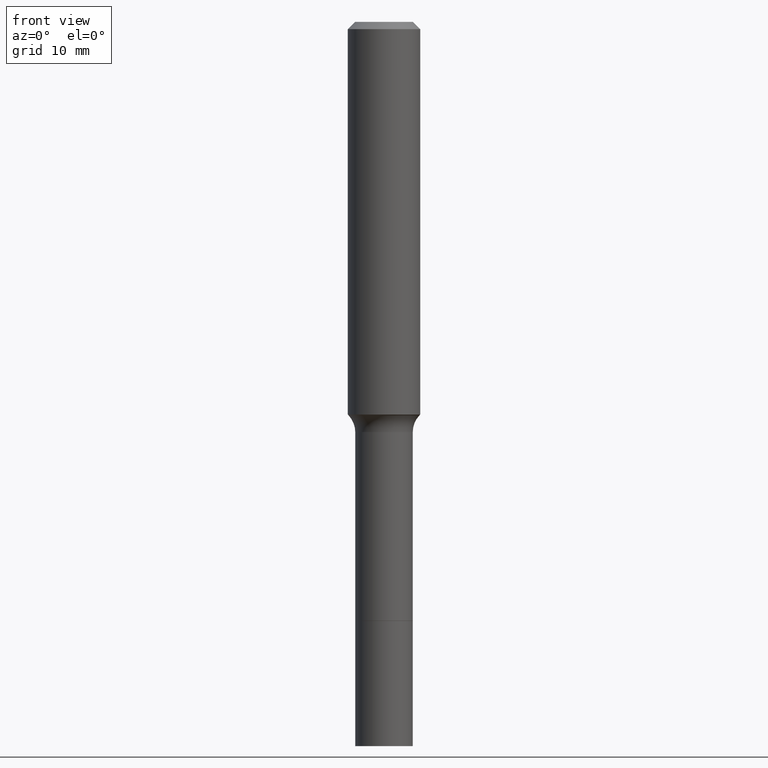
[diagram: clean part render]
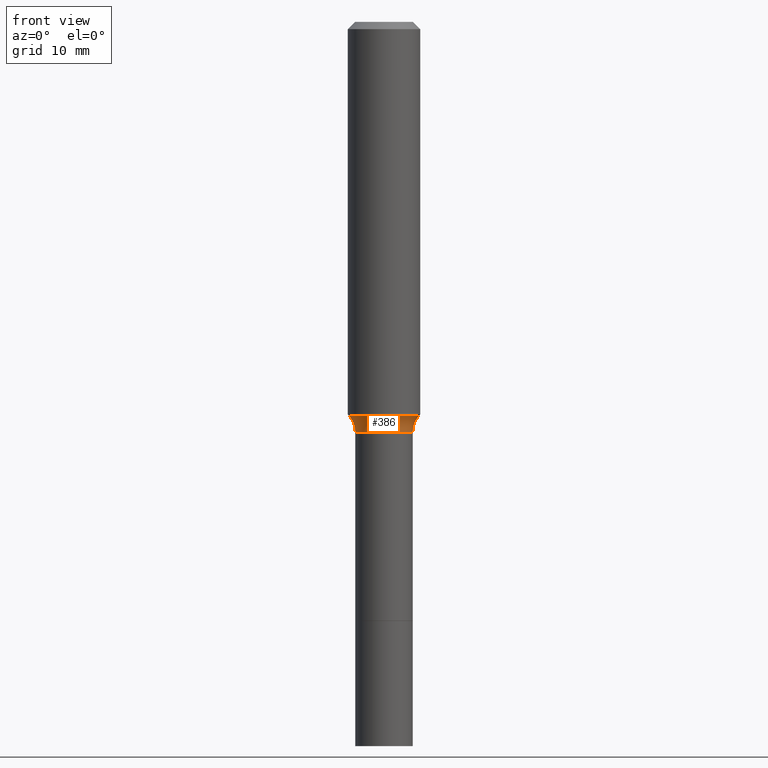
[diagram: same view with one face highlighted and labeled with its STEP entity id]
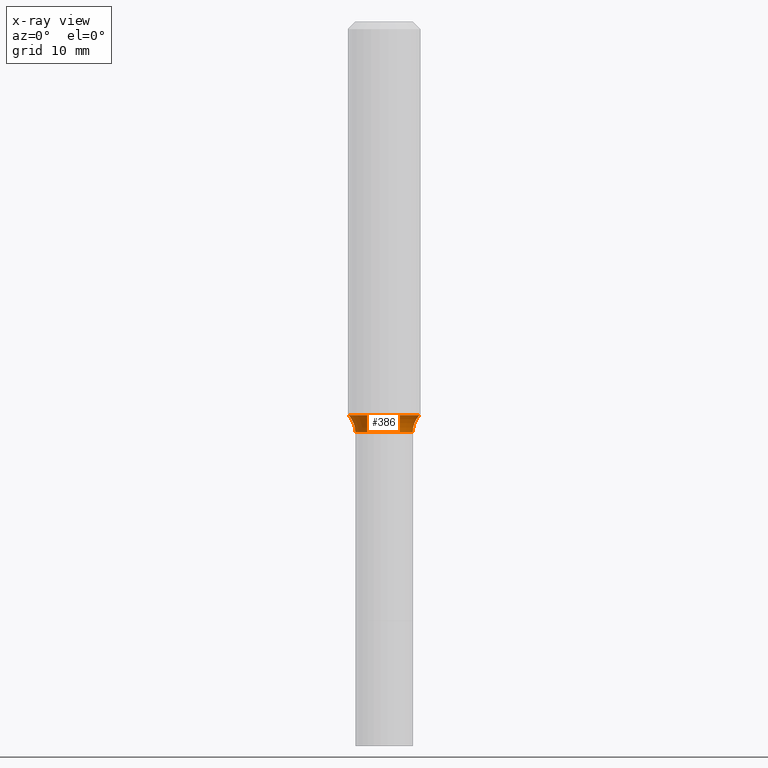
[diagram: x-ray of the same camera — body ghosted, the highlighted face saturated]
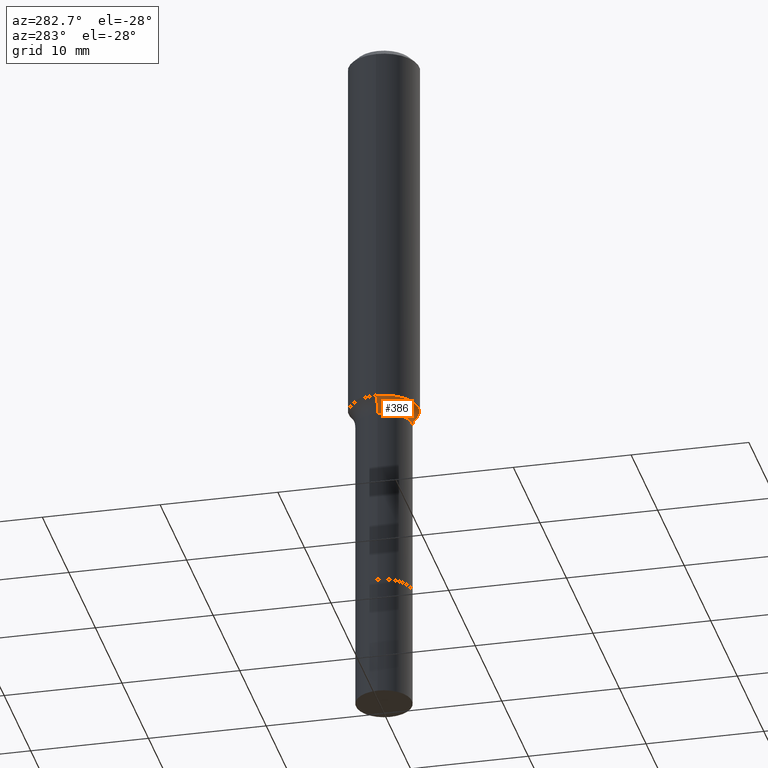
[diagram: same view with one face highlighted and labeled with its STEP entity id]
A machine part, front view. The second image highlights one B-rep face of the part: STEP entity #386.
The next image is the same camera in x-ray: the body ghosted, the highlighted face saturated — about 0% of this face is hidden behind the body in this view.
A second angle (auxiliary view) of the same face is appended — the face is thin or edge-on in the first view.
In plain terms, the highlighted toroidal blend (fillet) surface has major radius 4.4132 mm and minor (blend) radius 2.032 mm.
Its self-contained STEP definition (entity closure, byte-faithful):
#4 = CIRCLE ( 'NONE', #76, 0.1152417038704663249 ) ;
#15 = DIRECTION ( 'NONE',  ( -2.445468806185136597E-29, 3.491481338843145583E-15, 1.000000000000000000 ) ) ;
#24 = TOROIDAL_SURFACE ( 'NONE', #338, 0.1737499999999999323, 0.07999999999999993228 ) ;
#37 = DIRECTION ( 'NONE',  ( 1.000000000000000000, -6.982962677686269077E-15, 4.883557194083113462E-29 ) ) ;
#47 = EDGE_CURVE ( 'NONE', #480, #64, #139, .T. ) ;
#54 = CIRCLE ( 'NONE', #135, 0.07999999999999993228 ) ;
#61 = VERTEX_POINT ( 'NONE', #307 ) ;
#64 = VERTEX_POINT ( 'NONE', #270 ) ;
#68 = ORIENTED_EDGE ( 'NONE', *, *, #375, .T. ) ;
#74 = ORIENTED_EDGE ( 'NONE', *, *, #474, .F. ) ;
#76 = AXIS2_PLACEMENT_3D ( 'NONE', #95, #15, #205 ) ;
#82 = CARTESIAN_POINT ( 'NONE',  ( -0.1152417038704663388, -3.662964008439745082E-15, -1.283640131195000089 ) ) ;
#95 = CARTESIAN_POINT ( 'NONE',  ( 3.139101899204769565E-29, -4.481805563857510262E-15, -1.283640131195000089 ) ) ;
#104 = ORIENTED_EDGE ( 'NONE', *, *, #47, .T. ) ;
#107 = ORIENTED_EDGE ( 'NONE', *, *, #269, .F. ) ;
#115 = DIRECTION ( 'NONE',  ( -2.445468806185136597E-29, 3.491481338843145583E-15, 1.000000000000000000 ) ) ;
#135 = AXIS2_PLACEMENT_3D ( 'NONE', #420, #317, #506 ) ;
#139 = CIRCLE ( 'NONE', #440, 0.09374999999999994449 ) ;
#150 = DIRECTION ( 'NONE',  ( -2.445468806185136597E-29, 3.491481338843145583E-15, 1.000000000000000000 ) ) ;
#185 = EDGE_LOOP ( 'NONE', ( #107, #68, #104, #74 ) ) ;
#205 = DIRECTION ( 'NONE',  ( 1.000000000000000000, -6.982962677686263555E-15, 0.000000000000000000 ) ) ;
#239 = CARTESIAN_POINT ( 'NONE',  ( 0.1737499999999999323, -5.885590092887885113E-15, -1.338200000000000056 ) ) ;
#244 = DIRECTION ( 'NONE',  ( 1.000000000000000000, -6.982962677686265133E-15, 0.000000000000000000 ) ) ;
#255 = DIRECTION ( 'NONE',  ( 1.000000000000000000, -6.982962677686266711E-15, 0.000000000000000000 ) ) ;
#269 = EDGE_CURVE ( 'NONE', #505, #61, #4, .T. ) ;
#270 = CARTESIAN_POINT ( 'NONE',  ( 0.09374999999999994449, -5.326953078672984249E-15, -1.338200000000000056 ) ) ;
#280 = CARTESIAN_POINT ( 'NONE',  ( -0.09374999999999994449, -5.078924154224360545E-15, -1.338200000000000056 ) ) ;
#307 = CARTESIAN_POINT ( 'NONE',  ( 0.1152417038704663388, -5.286534080897948923E-15, -1.283640131195000089 ) ) ;
#317 = DIRECTION ( 'NONE',  ( 7.105427357601001859E-15, 1.000000000000000000, -3.491481338843145583E-15 ) ) ;
#338 = AXIS2_PLACEMENT_3D ( 'NONE', #374, #115, #37 ) ;
#374 = CARTESIAN_POINT ( 'NONE',  ( 3.272526356436949336E-29, -4.672300327639896745E-15, -1.338200000000000056 ) ) ;
#375 = EDGE_CURVE ( 'NONE', #505, #480, #54, .T. ) ;
#379 = CIRCLE ( 'NONE', #403, 0.07999999999999993228 ) ;
#380 = CARTESIAN_POINT ( 'NONE',  ( 3.272526356436949336E-29, -4.672300327639896745E-15, -1.338200000000000056 ) ) ;
#386 = ADVANCED_FACE ( 'NONE', ( #518 ), #24, .F. ) ;
#403 = AXIS2_PLACEMENT_3D ( 'NONE', #239, #491, #244 ) ;
#420 = CARTESIAN_POINT ( 'NONE',  ( -0.1737499999999999323, -3.437732324256723745E-15, -1.338200000000000056 ) ) ;
#440 = AXIS2_PLACEMENT_3D ( 'NONE', #380, #150, #255 ) ;
#474 = EDGE_CURVE ( 'NONE', #61, #64, #379, .T. ) ;
#480 = VERTEX_POINT ( 'NONE', #280 ) ;
#491 = DIRECTION ( 'NONE',  ( -6.982962677686266711E-15, -1.000000000000000000, 3.491481338843145583E-15 ) ) ;
#505 = VERTEX_POINT ( 'NONE', #82 ) ;
#506 = DIRECTION ( 'NONE',  ( -1.000000000000000000, 7.105427357601005014E-15, 0.000000000000000000 ) ) ;
#518 = FACE_OUTER_BOUND ( 'NONE', #185, .T. ) ;